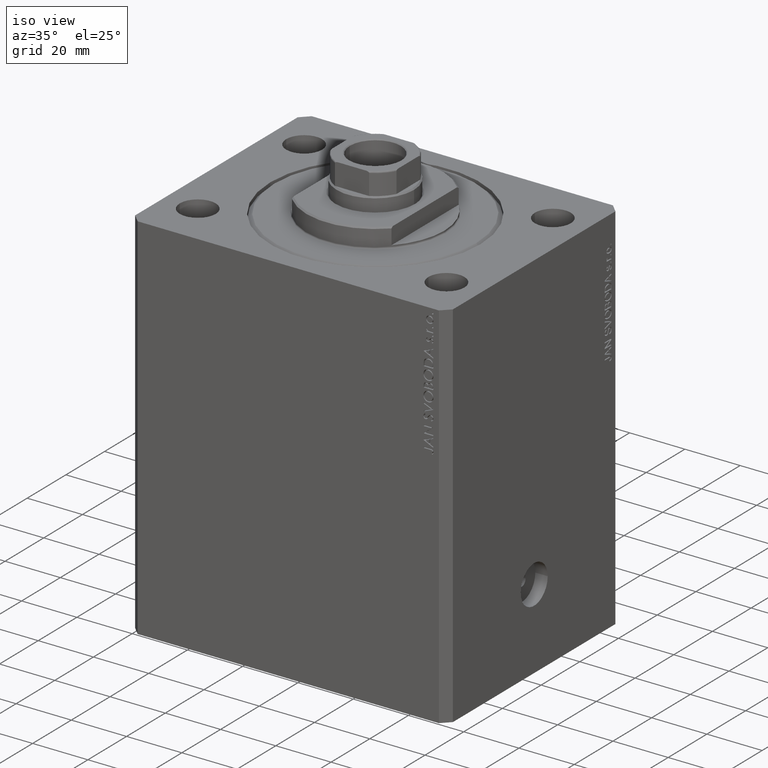
[diagram: clean part render]
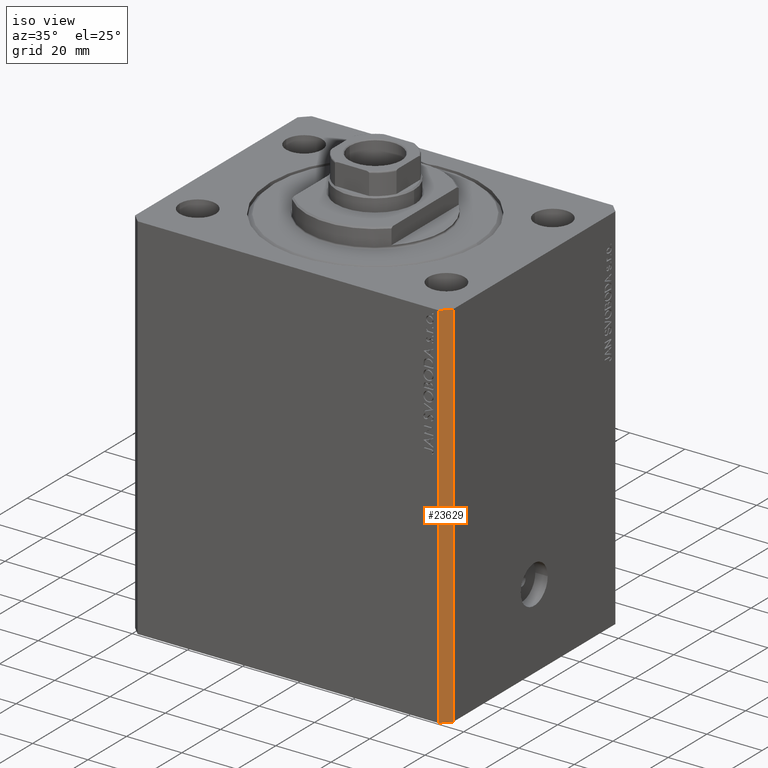
[diagram: same view with one face highlighted and labeled with its STEP entity id]
A machine part, iso view. The second image highlights one B-rep face of the part: STEP entity #23629.
In plain terms, the highlighted planar face has unit normal (0.7071, -0.7071, 0).
Its self-contained STEP definition (entity closure, byte-faithful):
#314 = CARTESIAN_POINT ( 'NONE',  ( 54.50000000000000711, -44.99999999999998579, -135.0000000000000000 ) ) ;
#1164 = DIRECTION ( 'NONE',  ( 0.000000000000000000, 0.000000000000000000, 1.000000000000000000 ) ) ;
#2831 = DIRECTION ( 'NONE',  ( 0.7071067811865483499, 0.7071067811865466846, 0.000000000000000000 ) ) ;
#3431 = DIRECTION ( 'NONE',  ( 0.7071067811865483499, 0.7071067811865466846, 0.000000000000000000 ) ) ;
#5170 = CARTESIAN_POINT ( 'NONE',  ( 54.50000000000000711, -44.99999999999998579, -135.0000000000000000 ) ) ;
#5953 = EDGE_CURVE ( 'NONE', #12749, #30294, #37324, .T. ) ;
#9074 = VERTEX_POINT ( 'NONE', #28234 ) ;
#9800 = LINE ( 'NONE', #16978, #15100 ) ;
#11469 = EDGE_CURVE ( 'NONE', #37144, #9074, #27405, .T. ) ;
#12075 = CARTESIAN_POINT ( 'NONE',  ( 54.50000000000000711, -44.99999999999998579, -135.0000000000000000 ) ) ;
#12603 = DIRECTION ( 'NONE',  ( 0.000000000000000000, 0.000000000000000000, 1.000000000000000000 ) ) ;
#12749 = VERTEX_POINT ( 'NONE', #18169 ) ;
#15100 = VECTOR ( 'NONE', #2831, 1000.000000000000000 ) ;
#16978 = CARTESIAN_POINT ( 'NONE',  ( 54.50000000000000711, -44.99999999999998579, 0.000000000000000000 ) ) ;
#17469 = ORIENTED_EDGE ( 'NONE', *, *, #27718, .T. ) ;
#18169 = CARTESIAN_POINT ( 'NONE',  ( 57.50000000000000711, -41.99999999999998579, -135.0000000000000000 ) ) ;
#18787 = LINE ( 'NONE', #314, #22529 ) ;
#19733 = FACE_OUTER_BOUND ( 'NONE', #30933, .T. ) ;
#21796 = AXIS2_PLACEMENT_3D ( 'NONE', #12075, #24013, #45071 ) ;
#22529 = VECTOR ( 'NONE', #3431, 1000.000000000000000 ) ;
#23588 = CARTESIAN_POINT ( 'NONE',  ( 54.50000000000000711, -44.99999999999998579, -135.0000000000000000 ) ) ;
#23629 = ADVANCED_FACE ( 'NONE', ( #19733 ), #23777, .T. ) ;
#23777 = PLANE ( 'NONE',  #21796 ) ;
#24013 = DIRECTION ( 'NONE',  ( 0.7071067811865466846, -0.7071067811865483499, 0.000000000000000000 ) ) ;
#26255 = EDGE_CURVE ( 'NONE', #9074, #30294, #9800, .T. ) ;
#26541 = CARTESIAN_POINT ( 'NONE',  ( 57.50000000000000711, -41.99999999999998579, -135.0000000000000000 ) ) ;
#27405 = LINE ( 'NONE', #5170, #39150 ) ;
#27718 = EDGE_CURVE ( 'NONE', #37144, #12749, #18787, .T. ) ;
#28234 = CARTESIAN_POINT ( 'NONE',  ( 54.50000000000000711, -44.99999999999998579, 0.000000000000000000 ) ) ;
#28380 = VECTOR ( 'NONE', #1164, 1000.000000000000000 ) ;
#30221 = ORIENTED_EDGE ( 'NONE', *, *, #5953, .T. ) ;
#30294 = VERTEX_POINT ( 'NONE', #30726 ) ;
#30726 = CARTESIAN_POINT ( 'NONE',  ( 57.50000000000000711, -41.99999999999998579, 0.000000000000000000 ) ) ;
#30933 = EDGE_LOOP ( 'NONE', ( #35544, #46744, #17469, #30221 ) ) ;
#35544 = ORIENTED_EDGE ( 'NONE', *, *, #26255, .F. ) ;
#37144 = VERTEX_POINT ( 'NONE', #23588 ) ;
#37324 = LINE ( 'NONE', #26541, #28380 ) ;
#39150 = VECTOR ( 'NONE', #12603, 1000.000000000000000 ) ;
#45071 = DIRECTION ( 'NONE',  ( 0.7071067811865483499, 0.7071067811865466846, 0.000000000000000000 ) ) ;
#46744 = ORIENTED_EDGE ( 'NONE', *, *, #11469, .F. ) ;